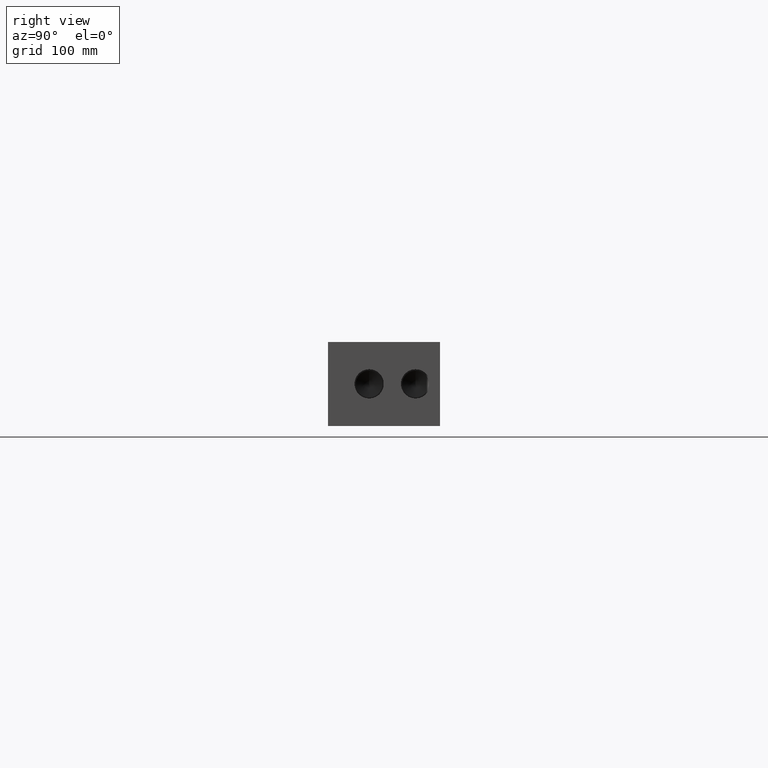
[diagram: clean part render]
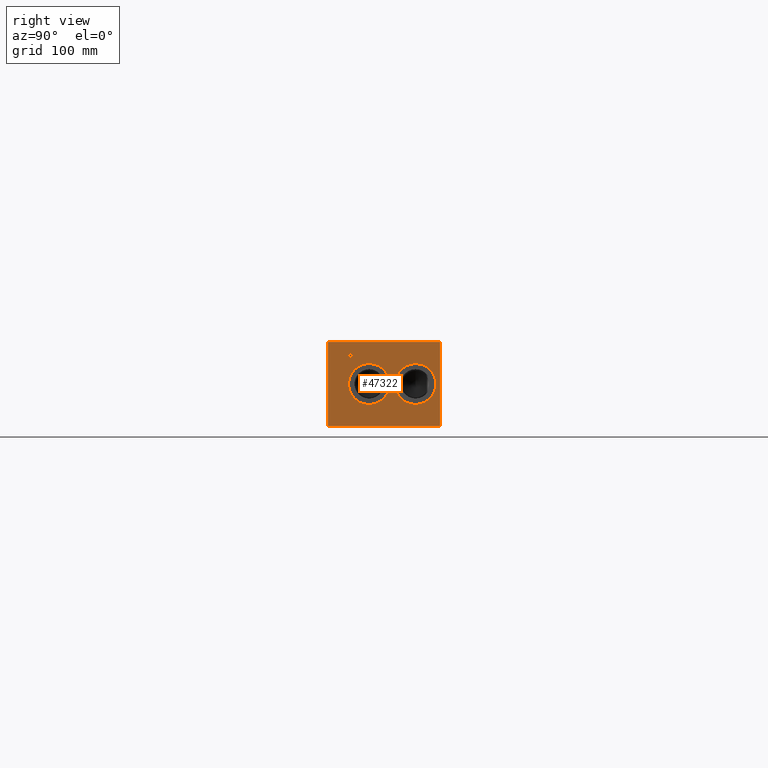
[diagram: same view with one face highlighted and labeled with its STEP entity id]
A machine part, right view. The second image highlights one B-rep face of the part: STEP entity #47322.
In plain terms, the highlighted planar face has unit normal (1, 0, 0).
Its self-contained STEP definition (entity closure, byte-faithful):
#660=CIRCLE('',#49696,18.5547);
#661=CIRCLE('',#49697,18.5547);
#662=CIRCLE('',#49698,18.5547);
#663=CIRCLE('',#49699,18.5547);
#2060=FACE_BOUND('',#8180,.T.);
#2061=FACE_BOUND('',#8181,.T.);
#2062=FACE_BOUND('',#8182,.T.);
#2063=FACE_BOUND('',#8183,.T.);
#3152=B_SPLINE_CURVE_WITH_KNOTS('',2,(#71863,#71864,#71865,#71866),
 .UNSPECIFIED.,.F.,.F.,(3,1,3),(0.,1.,2.),.UNSPECIFIED.);
#3154=B_SPLINE_CURVE_WITH_KNOTS('',2,(#71884,#71885,#71886,#71887),
 .UNSPECIFIED.,.F.,.F.,(3,1,3),(0.,1.,2.),.UNSPECIFIED.);
#3156=B_SPLINE_CURVE_WITH_KNOTS('',2,(#71933,#71934,#71935,#71936),
 .UNSPECIFIED.,.F.,.F.,(3,1,3),(0.,1.,2.),.UNSPECIFIED.);
#3158=B_SPLINE_CURVE_WITH_KNOTS('',2,(#71951,#71952,#71953,#71954),
 .UNSPECIFIED.,.F.,.F.,(3,1,3),(0.,1.,2.),.UNSPECIFIED.);
#5484=FACE_OUTER_BOUND('',#8179,.T.);
#8179=EDGE_LOOP('',(#34672,#34673,#34674,#34675));
#8180=EDGE_LOOP('',(#34676,#34677));
#8181=EDGE_LOOP('',(#34678,#34679));
#8182=EDGE_LOOP('',(#34680,#34681,#34682,#34683,#34684,#34685,#34686,#34687));
#8183=EDGE_LOOP('',(#34688,#34689,#34690,#34691,#34692,#34693,#34694,#34695,
#34696));
#10579=LINE('',#64600,#14575);
#11150=LINE('',#67271,#15146);
#12014=LINE('',#71896,#16010);
#12017=LINE('',#71902,#16013);
#12020=LINE('',#71908,#16016);
#12023=LINE('',#71914,#16019);
#12026=LINE('',#71920,#16022);
#12030=LINE('',#71962,#16026);
#12031=LINE('',#71963,#16027);
#12032=LINE('',#71974,#16028);
#12033=LINE('',#71976,#16029);
#12034=LINE('',#71978,#16030);
#12035=LINE('',#71980,#16031);
#12036=LINE('',#71982,#16032);
#12037=LINE('',#71984,#16033);
#12038=LINE('',#71986,#16034);
#12039=LINE('',#71987,#16035);
#14575=VECTOR('',#52715,10.);
#15146=VECTOR('',#53654,10.);
#16010=VECTOR('',#55218,10.);
#16013=VECTOR('',#55223,10.);
#16016=VECTOR('',#55228,10.);
#16019=VECTOR('',#55233,10.);
#16022=VECTOR('',#55238,10.);
#16026=VECTOR('',#55246,10.);
#16027=VECTOR('',#55247,10.);
#16028=VECTOR('',#55256,10.);
#16029=VECTOR('',#55257,10.);
#16030=VECTOR('',#55258,10.);
#16031=VECTOR('',#55259,10.);
#16032=VECTOR('',#55260,10.);
#16033=VECTOR('',#55261,10.);
#16034=VECTOR('',#55262,10.);
#16035=VECTOR('',#55263,10.);
#18573=VERTEX_POINT('',#64597);
#18574=VERTEX_POINT('',#64599);
#19282=VERTEX_POINT('',#67269);
#20127=VERTEX_POINT('',#71861);
#20128=VERTEX_POINT('',#71862);
#20131=VERTEX_POINT('',#71883);
#20133=VERTEX_POINT('',#71895);
#20135=VERTEX_POINT('',#71901);
#20137=VERTEX_POINT('',#71907);
#20139=VERTEX_POINT('',#71913);
#20141=VERTEX_POINT('',#71919);
#20143=VERTEX_POINT('',#71932);
#20145=VERTEX_POINT('',#71961);
#20146=VERTEX_POINT('',#71964);
#20147=VERTEX_POINT('',#71965);
#20148=VERTEX_POINT('',#71968);
#20149=VERTEX_POINT('',#71969);
#20150=VERTEX_POINT('',#71972);
#20151=VERTEX_POINT('',#71973);
#20152=VERTEX_POINT('',#71975);
#20153=VERTEX_POINT('',#71977);
#20154=VERTEX_POINT('',#71979);
#20155=VERTEX_POINT('',#71981);
#20156=VERTEX_POINT('',#71983);
#20157=VERTEX_POINT('',#71985);
#23534=EDGE_CURVE('',#18573,#18574,#10579,.T.);
#24399=EDGE_CURVE('',#18573,#19282,#11150,.T.);
#25636=EDGE_CURVE('',#20127,#20128,#3152,.T.);
#25640=EDGE_CURVE('',#20131,#20127,#3154,.T.);
#25643=EDGE_CURVE('',#20133,#20131,#12014,.T.);
#25646=EDGE_CURVE('',#20135,#20133,#12017,.T.);
#25649=EDGE_CURVE('',#20137,#20135,#12020,.T.);
#25652=EDGE_CURVE('',#20139,#20137,#12023,.T.);
#25655=EDGE_CURVE('',#20141,#20139,#12026,.T.);
#25658=EDGE_CURVE('',#20143,#20141,#3156,.T.);
#25661=EDGE_CURVE('',#20128,#20143,#3158,.T.);
#25663=EDGE_CURVE('',#19282,#20145,#12030,.T.);
#25664=EDGE_CURVE('',#18574,#20145,#12031,.T.);
#25665=EDGE_CURVE('',#20146,#20147,#660,.T.);
#25666=EDGE_CURVE('',#20147,#20146,#661,.T.);
#25667=EDGE_CURVE('',#20148,#20149,#662,.T.);
#25668=EDGE_CURVE('',#20149,#20148,#663,.T.);
#25669=EDGE_CURVE('',#20150,#20151,#12032,.T.);
#25670=EDGE_CURVE('',#20151,#20152,#12033,.T.);
#25671=EDGE_CURVE('',#20152,#20153,#12034,.T.);
#25672=EDGE_CURVE('',#20153,#20154,#12035,.T.);
#25673=EDGE_CURVE('',#20154,#20155,#12036,.T.);
#25674=EDGE_CURVE('',#20155,#20156,#12037,.T.);
#25675=EDGE_CURVE('',#20156,#20157,#12038,.T.);
#25676=EDGE_CURVE('',#20157,#20150,#12039,.T.);
#34672=ORIENTED_EDGE('',*,*,#24399,.T.);
#34673=ORIENTED_EDGE('',*,*,#25663,.T.);
#34674=ORIENTED_EDGE('',*,*,#25664,.F.);
#34675=ORIENTED_EDGE('',*,*,#23534,.F.);
#34676=ORIENTED_EDGE('',*,*,#25665,.T.);
#34677=ORIENTED_EDGE('',*,*,#25666,.T.);
#34678=ORIENTED_EDGE('',*,*,#25667,.T.);
#34679=ORIENTED_EDGE('',*,*,#25668,.T.);
#34680=ORIENTED_EDGE('',*,*,#25669,.T.);
#34681=ORIENTED_EDGE('',*,*,#25670,.T.);
#34682=ORIENTED_EDGE('',*,*,#25671,.T.);
#34683=ORIENTED_EDGE('',*,*,#25672,.T.);
#34684=ORIENTED_EDGE('',*,*,#25673,.T.);
#34685=ORIENTED_EDGE('',*,*,#25674,.T.);
#34686=ORIENTED_EDGE('',*,*,#25675,.T.);
#34687=ORIENTED_EDGE('',*,*,#25676,.T.);
#34688=ORIENTED_EDGE('',*,*,#25636,.T.);
#34689=ORIENTED_EDGE('',*,*,#25661,.T.);
#34690=ORIENTED_EDGE('',*,*,#25658,.T.);
#34691=ORIENTED_EDGE('',*,*,#25655,.T.);
#34692=ORIENTED_EDGE('',*,*,#25652,.T.);
#34693=ORIENTED_EDGE('',*,*,#25649,.T.);
#34694=ORIENTED_EDGE('',*,*,#25646,.T.);
#34695=ORIENTED_EDGE('',*,*,#25643,.T.);
#34696=ORIENTED_EDGE('',*,*,#25640,.T.);
#44095=PLANE('',#49695);
#47322=ADVANCED_FACE('',(#5484,#2060,#2061,#2062,#2063),#44095,.T.);
#49695=AXIS2_PLACEMENT_3D('',#71960,#55244,#55245);
#49696=AXIS2_PLACEMENT_3D('',#71966,#55248,#55249);
#49697=AXIS2_PLACEMENT_3D('',#71967,#55250,#55251);
#49698=AXIS2_PLACEMENT_3D('',#71970,#55252,#55253);
#49699=AXIS2_PLACEMENT_3D('',#71971,#55254,#55255);
#52715=DIRECTION('',(0.,0.,1.));
#53654=DIRECTION('',(0.,1.,0.));
#55218=DIRECTION('',(0.,1.,0.));
#55223=DIRECTION('',(0.,0.,1.));
#55228=DIRECTION('',(0.,-1.,0.));
#55233=DIRECTION('',(0.,0.,-1.));
#55238=DIRECTION('',(0.,-1.,0.));
#55244=DIRECTION('center_axis',(1.,0.,0.));
#55245=DIRECTION('ref_axis',(0.,1.,0.));
#55246=DIRECTION('',(0.,0.,1.));
#55247=DIRECTION('',(0.,1.,0.));
#55248=DIRECTION('center_axis',(-1.,0.,0.));
#55249=DIRECTION('ref_axis',(0.,0.,-1.));
#55250=DIRECTION('center_axis',(-1.,0.,0.));
#55251=DIRECTION('ref_axis',(0.,0.,-1.));
#55252=DIRECTION('center_axis',(-1.,0.,0.));
#55253=DIRECTION('ref_axis',(0.,0.,-1.));
#55254=DIRECTION('center_axis',(-1.,0.,0.));
#55255=DIRECTION('ref_axis',(0.,0.,-1.));
#55256=DIRECTION('',(0.,-1.,0.));
#55257=DIRECTION('',(0.,0.,1.));
#55258=DIRECTION('',(0.,-1.,0.));
#55259=DIRECTION('',(0.,0.,1.));
#55260=DIRECTION('',(0.,1.,0.));
#55261=DIRECTION('',(0.,0.,-1.));
#55262=DIRECTION('',(0.,-1.,0.));
#55263=DIRECTION('',(0.,0.,-1.));
#64597=CARTESIAN_POINT('',(650.875,0.,0.));
#64599=CARTESIAN_POINT('',(650.875,0.,76.2));
#64600=CARTESIAN_POINT('',(650.875,0.,0.));
#67269=CARTESIAN_POINT('',(650.875,101.6,0.));
#67271=CARTESIAN_POINT('',(650.875,0.,0.));
#71861=CARTESIAN_POINT('',(650.875,21.3630672023594,65.4850181439707));
#71862=CARTESIAN_POINT('',(650.875,22.119509654532,63.9669873726039));
#71863=CARTESIAN_POINT('Ctrl Pts',(650.875,21.3630672023594,65.4850181439707));
#71864=CARTESIAN_POINT('Ctrl Pts',(650.875,21.7181320268486,65.2431623939564));
#71865=CARTESIAN_POINT('Ctrl Pts',(650.875,22.119509654532,64.4970116758269));
#71866=CARTESIAN_POINT('Ctrl Pts',(650.875,22.119509654532,63.9669873726039));
#71883=CARTESIAN_POINT('',(650.875,19.7009521543883,65.8812499046326));
#71884=CARTESIAN_POINT('Ctrl Pts',(650.875,19.7009521543883,65.8812499046326));
#71885=CARTESIAN_POINT('Ctrl Pts',(650.875,20.2669975267624,65.8812499046326));
#71886=CARTESIAN_POINT('Ctrl Pts',(650.875,21.059461048086,65.6959986918556));
#71887=CARTESIAN_POINT('Ctrl Pts',(650.875,21.3630672023594,65.4850181439707));
#71895=CARTESIAN_POINT('',(650.875,18.1057333776978,65.8812499046326));
#71896=CARTESIAN_POINT('',(650.875,9.05286668884889,65.8812499046326));
#71901=CARTESIAN_POINT('',(650.875,18.1057333776978,59.53125));
#71902=CARTESIAN_POINT('',(650.875,18.1057333776978,29.765625));
#71907=CARTESIAN_POINT('',(650.875,18.9496555692373,59.53125));
#71908=CARTESIAN_POINT('',(650.875,9.47482778461864,59.53125));
#71913=CARTESIAN_POINT('',(650.875,18.9496555692373,61.8983488299279));
#71914=CARTESIAN_POINT('',(650.875,18.9496555692373,30.9491744149639));
#71919=CARTESIAN_POINT('',(650.875,19.6649310852372,61.8983488299279));
#71920=CARTESIAN_POINT('',(650.875,9.83246554261861,61.8983488299279));
#71932=CARTESIAN_POINT('',(650.875,21.5637560162011,62.5570198086904));
#71933=CARTESIAN_POINT('Ctrl Pts',(650.875,21.5637560162011,62.5570198086904));
#71934=CARTESIAN_POINT('Ctrl Pts',(650.875,21.2344205268198,62.2328301863307));
#71935=CARTESIAN_POINT('Ctrl Pts',(650.875,20.3441855320861,61.8983488299279));
#71936=CARTESIAN_POINT('Ctrl Pts',(650.875,19.6649310852372,61.8983488299279));
#71951=CARTESIAN_POINT('Ctrl Pts',(650.875,22.119509654532,63.9669873726039));
#71952=CARTESIAN_POINT('Ctrl Pts',(650.875,22.119509654532,63.5553180108774));
#71953=CARTESIAN_POINT('Ctrl Pts',(650.875,21.8261952343018,62.8143131597695));
#71954=CARTESIAN_POINT('Ctrl Pts',(650.875,21.5637560162011,62.5570198086904));
#71960=CARTESIAN_POINT('Origin',(650.875,0.,0.));
#71961=CARTESIAN_POINT('',(650.875,101.6,76.2));
#71962=CARTESIAN_POINT('',(650.875,101.6,0.));
#71963=CARTESIAN_POINT('',(650.875,0.,76.2));
#71964=CARTESIAN_POINT('',(650.875,79.375,19.5453));
#71965=CARTESIAN_POINT('',(650.875,79.375,56.6547));
#71966=CARTESIAN_POINT('Origin',(650.875,79.375,38.1));
#71967=CARTESIAN_POINT('Origin',(650.875,79.375,38.1));
#71968=CARTESIAN_POINT('',(650.875,37.3126,19.5453));
#71969=CARTESIAN_POINT('',(650.875,37.3126,56.6547));
#71970=CARTESIAN_POINT('Origin',(650.875,37.3126,38.1));
#71971=CARTESIAN_POINT('Origin',(650.875,37.3126,38.1));
#71972=CARTESIAN_POINT('',(650.875,91.869165271453,59.53125));
#71973=CARTESIAN_POINT('',(650.875,91.0252430799135,59.53125));
#71974=CARTESIAN_POINT('',(650.875,45.9345826357265,59.53125));
#71975=CARTESIAN_POINT('',(650.875,91.0252430799135,65.1299533194816));
#71976=CARTESIAN_POINT('',(650.875,91.0252430799135,29.765625));
#71977=CARTESIAN_POINT('',(650.875,88.8948541329784,65.1299533194816));
#71978=CARTESIAN_POINT('',(650.875,45.5126215399568,65.1299533194816));
#71979=CARTESIAN_POINT('',(650.875,88.8948541329784,65.8812499046326));
#71980=CARTESIAN_POINT('',(650.875,88.8948541329784,32.5649766597408));
#71981=CARTESIAN_POINT('',(650.875,93.9995542183881,65.8812499046326));
#71982=CARTESIAN_POINT('',(650.875,44.4474270664892,65.8812499046326));
#71983=CARTESIAN_POINT('',(650.875,93.9995542183881,65.1299533194816));
#71984=CARTESIAN_POINT('',(650.875,93.9995542183881,32.9406249523163));
#71985=CARTESIAN_POINT('',(650.875,91.869165271453,65.1299533194816));
#71986=CARTESIAN_POINT('',(650.875,46.999777109194,65.1299533194816));
#71987=CARTESIAN_POINT('',(650.875,91.869165271453,32.5649766597408));